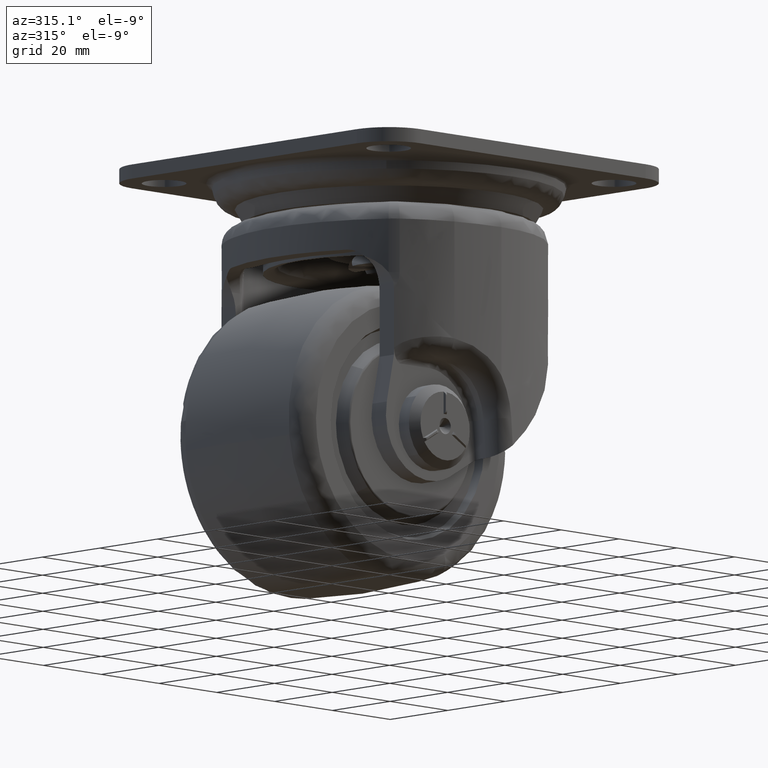
[diagram: clean part render]
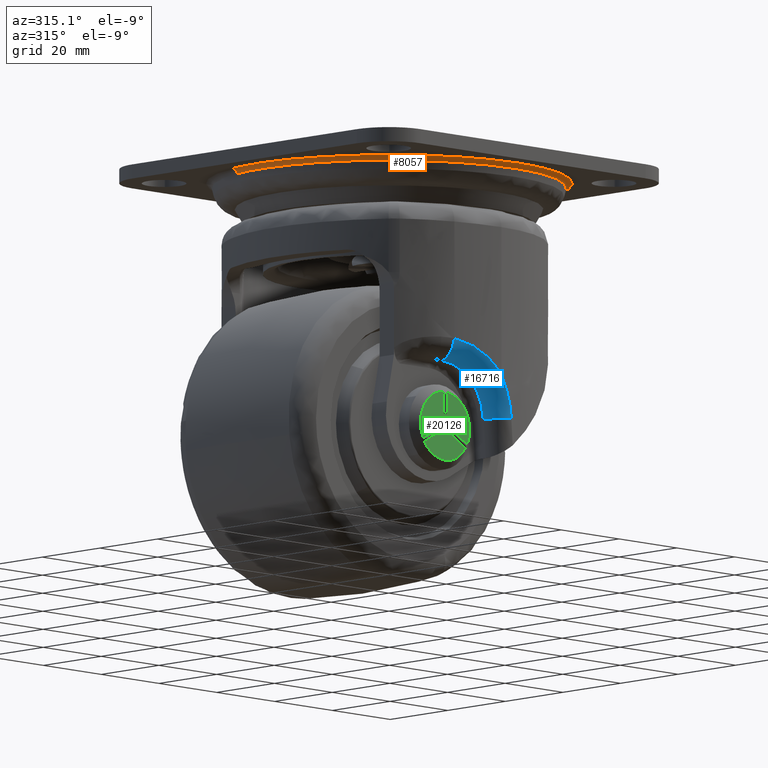
[diagram: same view with three faces highlighted in distinct colors, each labeled with its STEP entity id]
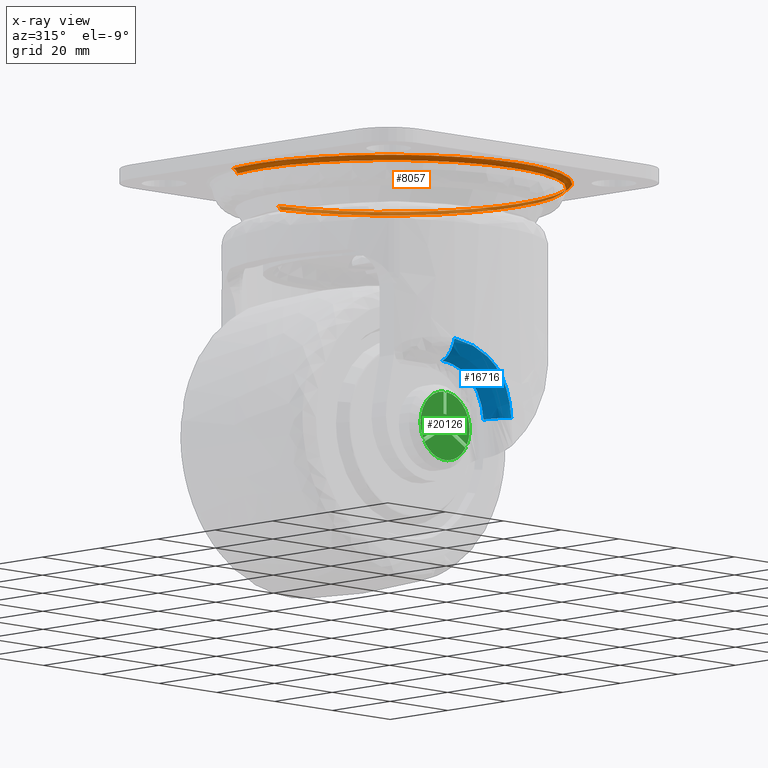
[diagram: x-ray of the same camera — body ghosted, the three highlighted faces saturated]
A machine part, auxiliary view with three faces highlighted in distinct colors.
The next image is the same camera in x-ray (body ghosted, the three faces saturated) — at least one of them is partly hidden behind the body in this view.
Their STEP definitions:

[orange] entity #8057 — the highlighted face is a freeform B-spline surface patch.
#5916=CARTESIAN_POINT('',(32.053869647076162,-29.371960005506700,-4.629707973970553));
#5917=VERTEX_POINT('',#5916);
#5923=CARTESIAN_POINT('',(-0.000001919446639,-43.476000713221758,-4.629707859614130));
#5924=VERTEX_POINT('',#5923);
#5925=CARTESIAN_POINT('',(32.053869647076162,-29.371960005506700,-4.629707973970553));
#5926=CARTESIAN_POINT('',(30.595455751196099,-30.963672546049430,-4.629707968767466));
#5927=CARTESIAN_POINT('',(27.303753365502459,-34.058183624007043,-4.629707957023903));
#5928=CARTESIAN_POINT('',(21.782179704217850,-37.828542785928072,-4.629707937324928));
#5929=CARTESIAN_POINT('',(16.341478926499121,-40.414185002820687,-4.629707917914561));
#5930=CARTESIAN_POINT('',(11.608830921702200,-41.968562001251087,-4.629707901030114));
#5931=CARTESIAN_POINT('',(6.382537778982758,-43.138523980301983,-4.629707882384733));
#5932=CARTESIAN_POINT('',(2.534287089427489,-43.476225486118402,-4.629707868655514));
#5933=CARTESIAN_POINT('',(-0.000001919446639,-43.476000713221758,-4.629707859614130));
#5934=B_SPLINE_CURVE_WITH_KNOTS('',3,(#5925,#5926,#5927,#5928,#5929,#5930,#5931,#5932,#5933),.UNSPECIFIED.,.F.,.U.,(4,1,1,1,1,1,4),(6.249905E-009,6.476475248966153,13.516141788348540,19.992600290383120,24.497992378932992,28.440210347800001,36.043034214055943),.UNSPECIFIED.);
#5935=EDGE_CURVE('',#5917,#5924,#5934,.T.);
#5937=CARTESIAN_POINT('',(-31.157118544281740,-30.321554153521969,-4.629707744863282));
#5938=VERTEX_POINT('',#5937);
#5939=CARTESIAN_POINT('',(-0.000001919446639,-43.476000713221758,-4.629707859614130));
#5940=CARTESIAN_POINT('',(-2.080595845805954,-43.476092463587037,-4.629707851951366));
#5941=CARTESIAN_POINT('',(-5.427603652709639,-43.235267967705887,-4.629707839624394));
#5942=CARTESIAN_POINT('',(-10.498556816780461,-42.274390050259740,-4.629707820948227));
#5943=CARTESIAN_POINT('',(-15.010293051646030,-40.911441092757649,-4.629707804331638));
#5944=CARTESIAN_POINT('',(-20.240758315038970,-38.625877917275830,-4.629707785067923));
#5945=CARTESIAN_POINT('',(-25.745758666259110,-35.279596346521657,-4.629707764793293));
#5946=CARTESIAN_POINT('',(-29.390751649505159,-32.136922394793977,-4.629707751368705));
#5947=CARTESIAN_POINT('',(-31.157118544281740,-30.321554153521969,-4.629707744863282));
#5948=B_SPLINE_CURVE_WITH_KNOTS('',3,(#5939,#5940,#5941,#5942,#5943,#5944,#5945,#5946,#5947),.UNSPECIFIED.,.F.,.U.,(4,1,1,1,1,1,4),(7.749343E-009,6.241776059562408,10.041132515879690,15.468784905209169,20.353638637896889,27.138188353513168,34.736877217700552),.UNSPECIFIED.);
#5949=EDGE_CURVE('',#5924,#5938,#5948,.T.);
#5997=CARTESIAN_POINT('',(-43.476000713221801,0.0,-4.629707859614130));
#5998=VERTEX_POINT('',#5997);
#5999=CARTESIAN_POINT('',(-31.157118544281740,-30.321554153521969,-4.629707744863282));
#6000=CARTESIAN_POINT('',(-33.229573023324278,-28.192662394679932,-4.629707752920010));
#6001=CARTESIAN_POINT('',(-36.335474107656417,-24.265394267939570,-4.629707767782577));
#6002=CARTESIAN_POINT('',(-39.679353936503340,-18.107192857558349,-4.629707791088136));
#6003=CARTESIAN_POINT('',(-41.678451792622752,-12.776122521848070,-4.629707811263334));
#6004=CARTESIAN_POINT('',(-43.108189801207963,-6.728425417404428,-4.629707834150620));
#6005=CARTESIAN_POINT('',(-43.476215410070978,-2.534126610874301,-4.629707850023847));
#6006=CARTESIAN_POINT('',(-43.476000713221801,0.0,-4.629707859614130));
#6007=B_SPLINE_CURVE_WITH_KNOTS('',3,(#5999,#6000,#6001,#6002,#6003,#6004,#6005,#6006),.UNSPECIFIED.,.F.,.U.,(4,1,1,1,1,4),(8.803326E-009,8.913093798433085,14.942548363697430,20.971980122384490,25.952829515231699,33.555170713053137),.UNSPECIFIED.);
#6008=EDGE_CURVE('',#5938,#5998,#6007,.T.);
#6010=CARTESIAN_POINT('',(-42.242661913668918,10.282030563446350,-4.629707857622346));
#6011=VERTEX_POINT('',#6010);
#6012=CARTESIAN_POINT('',(-43.476000713221801,0.0,-4.629707859614130));
#6013=CARTESIAN_POINT('',(-43.476395344986642,3.460164443964851,-4.629707859614777));
#6014=CARTESIAN_POINT('',(-43.061551058389057,6.920141080832084,-4.629707858944800));
#6015=CARTESIAN_POINT('',(-42.242661913668918,10.282030563446350,-4.629707857622346));
#6016=B_SPLINE_CURVE_WITH_KNOTS('',3,(#6012,#6013,#6014,#6015),.UNSPECIFIED.,.F.,.U.,(4,4),(1.020595E-009,10.380381237730280),.UNSPECIFIED.);
#6017=EDGE_CURVE('',#5998,#6011,#6016,.T.);
#6019=CARTESIAN_POINT('',(5.335744226354644,43.147334466735913,-4.629707858828935));
#6020=VERTEX_POINT('',#6019);
#6038=CARTESIAN_POINT('',(43.476000713221801,0.0,-4.629707859614130));
#6039=VERTEX_POINT('',#6038);
#6040=CARTESIAN_POINT('',(5.335744226354644,43.147334466735913,-4.629707858828935));
#6041=CARTESIAN_POINT('',(7.450525534314648,42.885933025874287,-4.629707858872475));
#6042=CARTESIAN_POINT('',(11.319083110971709,42.115389984241119,-4.629707858952129));
#6043=CARTESIAN_POINT('',(16.675132181092469,40.267162839264351,-4.629707859062356));
#6044=CARTESIAN_POINT('',(21.102439217069740,38.107262051437928,-4.629707859153563));
#6045=CARTESIAN_POINT('',(25.756394738988192,35.181027573177303,-4.629707859249290));
#6046=CARTESIAN_POINT('',(30.000712671069330,31.668081548669850,-4.629707859336764));
#6047=CARTESIAN_POINT('',(34.143624365535530,27.112583890789821,-4.629707859421975));
#6048=CARTESIAN_POINT('',(37.240956651108199,22.661550963384361,-4.629707859485830));
#6049=CARTESIAN_POINT('',(39.935955963812411,17.493797981476749,-4.629707859541141));
#6050=CARTESIAN_POINT('',(41.686048138105512,12.708747667191609,-4.629707859577297));
#6051=CARTESIAN_POINT('',(43.099993036391197,6.720327046487848,-4.629707859606501));
#6052=CARTESIAN_POINT('',(43.476290806001423,2.704592874332579,-4.629707859613875));
#6053=CARTESIAN_POINT('',(43.476000713221801,0.0,-4.629707859614130));
#6054=B_SPLINE_CURVE_WITH_KNOTS('',3,(#6040,#6041,#6042,#6043,#6044,#6045,#6046,#6047,#6048,#6049,#6050,#6051,#6052,#6053),.UNSPECIFIED.,.F.,.U.,(4,1,1,1,1,1,1,1,1,1,1,4),(0.000000034432141,6.392611738418907,11.801774612075610,16.965051913875140,21.144847152793979,28.275092007378369,33.438325100314572,39.585098778890703,44.502515219009759,50.895160885619383,54.829094514249903,62.942795512884473),.UNSPECIFIED.);
#6055=EDGE_CURVE('',#6020,#6039,#6054,.T.);
#6057=CARTESIAN_POINT('',(43.476000713221801,0.0,-4.629707859614130));
#6058=CARTESIAN_POINT('',(43.476104977552083,-2.099547723641163,-4.629707867788478));
#6059=CARTESIAN_POINT('',(43.226061274045733,-5.542759179384989,-4.629707881194249));
#6060=CARTESIAN_POINT('',(42.155481791408441,-11.072922509302410,-4.629707902725312));
#6061=CARTESIAN_POINT('',(40.625796196519168,-15.800576463905470,-4.629707921131870));
#6062=CARTESIAN_POINT('',(38.310027756893923,-20.751181150852680,-4.629707940406537));
#6063=CARTESIAN_POINT('',(35.624604320735173,-25.126025780990219,-4.629707957439454));
#6064=CARTESIAN_POINT('',(33.302134146593417,-28.009809959525700,-4.629707968667224));
#6065=CARTESIAN_POINT('',(32.053869647076162,-29.371960005506700,-4.629707973970553));
#6066=B_SPLINE_CURVE_WITH_KNOTS('',3,(#6057,#6058,#6059,#6060,#6061,#6062,#6063,#6064,#6065),.UNSPECIFIED.,.F.,.U.,(4,1,1,1,1,1,4),(0.000000010308867,6.298631753708616,10.329765163857321,16.880322943604568,21.163408749043072,26.706223307339570,32.249017653265511),.UNSPECIFIED.);
#6067=EDGE_CURVE('',#6039,#5917,#6066,.T.);
#7920=CARTESIAN_POINT('',(5.333323294588442,43.127717749641555,-4.718461079368458));
#7921=CARTESIAN_POINT('',(7.831529662693767,42.818780877650077,-4.718461079368458));
#7922=CARTESIAN_POINT('',(10.277356033511721,42.223457089842690,-4.718461079368456));
#7923=CARTESIAN_POINT('',(52.500813123354419,31.946101056330967,-4.718461079368457));
#7924=CARTESIAN_POINT('',(42.223457089842690,-10.277356033511721,-4.718461079368456));
#7925=CARTESIAN_POINT('',(31.946101056330967,-52.500813123354419,-4.718461079368457));
#7926=CARTESIAN_POINT('',(-10.277356033511728,-42.223457089842690,-4.718461079368456));
#7927=CARTESIAN_POINT('',(-52.500813123354419,-31.946101056330967,-4.718461079368457));
#7928=CARTESIAN_POINT('',(-42.223457089842690,10.277356033511722,-4.718461079368456));
#7929=CARTESIAN_POINT('',(5.363709708075516,43.373436336704174,-3.422778325703773));
#7930=CARTESIAN_POINT('',(7.876149515161433,43.062739308237056,-3.422778325703773));
#7931=CARTESIAN_POINT('',(10.335910891850245,42.464023685025026,-3.422778325703774));
#7932=CARTESIAN_POINT('',(52.799934576875252,32.128112793174779,-3.422778325703773));
#7933=CARTESIAN_POINT('',(42.464023685025026,-10.335910891850244,-3.422778325703774));
#7934=CARTESIAN_POINT('',(32.128112793174758,-52.799934576875252,-3.422778325703773));
#7935=CARTESIAN_POINT('',(-10.335910891850249,-42.464023685025026,-3.422778325703774));
#7936=CARTESIAN_POINT('',(-52.799934576875252,-32.128112793174758,-3.422778325703773));
#7937=CARTESIAN_POINT('',(-42.464023685025026,10.335910891850247,-3.422778325703774));
#7938=CARTESIAN_POINT('',(5.525306413540140,44.680182003073533,-3.502759726695740));
#7939=CARTESIAN_POINT('',(8.113440472850774,44.360124360604061,-3.502759726695739));
#7940=CARTESIAN_POINT('',(10.647309017215647,43.743370760415836,-3.502759726695740));
#7941=CARTESIAN_POINT('',(54.390679777631497,33.096061743200195,-3.502759726695739));
#7942=CARTESIAN_POINT('',(43.743370760415836,-10.647309017215640,-3.502759726695740));
#7943=CARTESIAN_POINT('',(33.096061743200181,-54.390679777631497,-3.502759726695739));
#7944=CARTESIAN_POINT('',(-10.647309017215649,-43.743370760415836,-3.502759726695740));
#7945=CARTESIAN_POINT('',(-54.390679777631497,-33.096061743200181,-3.502759726695739));
#7946=CARTESIAN_POINT('',(-43.743370760415836,10.647309017215649,-3.502759726695740));
#7954=(BOUNDED_SURFACE()B_SPLINE_SURFACE(2,2,((#7920,#7929,#7938),(#7921,#7930,#7939),(#7922,#7931,#7940),(#7923,#7932,#7941),(#7924,#7933,#7942),(#7925,#7934,#7943),(#7926,#7935,#7944),(#7927,#7936,#7945),(#7928,#7937,#7946)),.UNSPECIFIED.,.F.,.F.,.U.)B_SPLINE_SURFACE_WITH_KNOTS((3,2,2,2,3),(3,3),(0.0,5.967390167073430,80.559838392393374,155.152286617713290,229.744734843033310),(0.0,2.262961734938772),.UNSPECIFIED.)GEOMETRIC_REPRESENTATION_ITEM()RATIONAL_B_SPLINE_SURFACE(((0.875760305103676,0.657406138772205,0.875150902904258),(0.893774018128173,0.670928475255568,0.893152080996225),(0.915218910690395,0.687026491954379,0.914582051022431),(0.647157498019343,0.485801091315747,0.646707170229462),(0.915218910690395,0.687026491954379,0.914582051022431),(0.647157498019343,0.485801091315747,0.646707170229462),(0.915218910690395,0.687026491954379,0.914582051022431),(0.647157498019343,0.485801091315747,0.646707170229462),(0.915218910690395,0.687026491954379,0.914582051022431)))REPRESENTATION_ITEM('')SURFACE());
#7955=ORIENTED_EDGE('',*,*,#6055,.F.);
#7956=CARTESIAN_POINT('',(5.514139446937775,44.589922027018467,-3.500000000000000));
#7957=VERTEX_POINT('',#7956);
#7958=CARTESIAN_POINT('',(5.335744226354644,43.147334466735913,-4.629707858828935));
#7959=CARTESIAN_POINT('',(5.340116752568878,43.182692767862378,-4.489641719625759));
#7960=CARTESIAN_POINT('',(5.353883705079614,43.294018813361603,-4.219950754470428));
#7961=CARTESIAN_POINT('',(5.385395084047959,43.548834627170343,-3.904395412324613));
#7962=CARTESIAN_POINT('',(5.420438117368603,43.832209057141313,-3.696397029904267));
#7963=CARTESIAN_POINT('',(5.462202362423206,44.169934362663753,-3.543070481660410));
#7964=CARTESIAN_POINT('',(5.493866656694696,44.425986721379111,-3.499908538943924));
#7965=CARTESIAN_POINT('',(5.514139446937775,44.589922027018467,-3.500000000000000));
#7966=B_SPLINE_CURVE_WITH_KNOTS('',3,(#7958,#7959,#7960,#7961,#7962,#7963,#7964,#7965),.UNSPECIFIED.,.F.,.U.,(4,1,1,1,1,4),(0.000000178748468,0.433575131742481,0.867180028088031,1.207820504900976,1.486552194676647,1.982069533318537),.UNSPECIFIED.);
#7967=EDGE_CURVE('',#6020,#7957,#7966,.T.);
#7968=ORIENTED_EDGE('',*,*,#7967,.T.);
#7969=CARTESIAN_POINT('',(44.929576899999901,0.0,-3.500000000000000));
#7970=VERTEX_POINT('',#7969);
#7971=CARTESIAN_POINT('',(5.514139446937775,44.589922027018467,-3.500000000000000));
#7972=CARTESIAN_POINT('',(7.195264592860379,44.382065496134921,-3.499999999999997));
#7973=CARTESIAN_POINT('',(10.450497867916210,43.791028021834293,-3.499999999999998));
#7974=CARTESIAN_POINT('',(15.246060846976100,42.360689163679787,-3.500000000000004));
#7975=CARTESIAN_POINT('',(19.621392425607770,40.510036815750233,-3.500000000000005));
#7976=CARTESIAN_POINT('',(23.926129857524991,38.131604740366441,-3.499999999999992));
#7977=CARTESIAN_POINT('',(28.231206079145430,35.108540832477317,-3.500000000000020));
#7978=CARTESIAN_POINT('',(32.182568173517232,31.504404017946790,-3.500000000000000));
#7979=CARTESIAN_POINT('',(35.509219100826002,27.654065785422571,-3.500000000000023));
#7980=CARTESIAN_POINT('',(38.086938181514768,23.971940794822100,-3.499999999999996));
#7981=CARTESIAN_POINT('',(40.578745068083620,19.536217408761289,-3.499999999999958));
#7982=CARTESIAN_POINT('',(42.497404356145218,14.908591581291050,-3.500000000000130));
#7983=CARTESIAN_POINT('',(43.852409755325233,10.092674338541590,-3.499999999999743));
#7984=CARTESIAN_POINT('',(44.708879814690093,5.335868758526067,-3.500000000000514));
#7985=CARTESIAN_POINT('',(44.929653518608660,1.948021832785578,-3.499999999999485));
#7986=CARTESIAN_POINT('',(44.929576899999901,0.0,-3.500000000000000));
#7987=B_SPLINE_CURVE_WITH_KNOTS('',3,(#7971,#7972,#7973,#7974,#7975,#7976,#7977,#7978,#7979,#7980,#7981,#7982,#7983,#7984,#7985,#7986),.UNSPECIFIED.,.F.,.U.,(4,1,1,1,1,1,1,1,1,1,1,1,1,4),(0.000000033813180,5.081781769190869,9.909524105157594,14.991349540204340,19.310902570276461,24.646802656354801,30.744988937891289,35.318580162398753,39.892223951981677,44.211775215691532,50.564057388382068,54.883611142926952,59.203161685962520,65.047224327267429),.UNSPECIFIED.);
#7988=EDGE_CURVE('',#7957,#7970,#7987,.T.);
#7989=ORIENTED_EDGE('',*,*,#7988,.T.);
#7990=CARTESIAN_POINT('',(-0.000001883878377,-44.929576899999873,-3.500000000000000));
#7991=VERTEX_POINT('',#7990);
#7992=CARTESIAN_POINT('',(44.929576899999901,0.0,-3.500000000000000));
#7993=CARTESIAN_POINT('',(44.929711808219722,-2.205473834045155,-3.500000000000004));
#7994=CARTESIAN_POINT('',(44.665110853303858,-5.789325981834421,-3.499999999999994));
#7995=CARTESIAN_POINT('',(43.551984755059699,-11.476946483480390,-3.499999999999997));
#7996=CARTESIAN_POINT('',(41.935101433485983,-16.474090816608669,-3.500000000000018));
#7997=CARTESIAN_POINT('',(39.455987206104872,-21.715609100249349,-3.499999999999986));
#7998=CARTESIAN_POINT('',(36.808538682430502,-25.924886761268372,-3.500000000000026));
#7999=CARTESIAN_POINT('',(33.430112272483349,-30.172770011126438,-3.499999999999998));
#8000=CARTESIAN_POINT('',(29.836399903797240,-33.744522707168493,-3.500000000000003));
#8001=CARTESIAN_POINT('',(25.327926050112410,-37.240735478805433,-3.500000000000008));
#8002=CARTESIAN_POINT('',(20.666914630757589,-40.034466147450260,-3.499999999999997));
#8003=CARTESIAN_POINT('',(15.265505268239449,-42.389210722377257,-3.499999999999999));
#8004=CARTESIAN_POINT('',(10.400201281459429,-43.800085412293683,-3.500000000000010));
#8005=CARTESIAN_POINT('',(5.237967097844428,-44.712104579502402,-3.499999999999966));
#8006=CARTESIAN_POINT('',(2.021678720290660,-44.929657228979487,-3.500000000000069));
#8007=CARTESIAN_POINT('',(-0.000001883878377,-44.929576899999873,-3.500000000000000));
#8008=B_SPLINE_CURVE_WITH_KNOTS('',3,(#7992,#7993,#7994,#7995,#7996,#7997,#7998,#7999,#8000,#8001,#8002,#8003,#8004,#8005,#8006,#8007),.UNSPECIFIED.,.F.,.U.,(4,1,1,1,1,1,1,1,1,1,1,1,1,4),(0.000000020883490,6.616404740258616,10.751709418848160,17.368146450906000,22.330488771830179,28.119881631333449,32.255146847581251,38.595879909674039,43.282499287402857,49.347591614874652,54.861289631923732,60.926368638862662,64.510288324206115,70.575326132780944),.UNSPECIFIED.);
#8009=EDGE_CURVE('',#7970,#7991,#8008,.T.);
#8010=ORIENTED_EDGE('',*,*,#8009,.T.);
#8011=CARTESIAN_POINT('',(-44.929576899999901,0.0,-3.500000000000000));
#8012=VERTEX_POINT('',#8011);
#8013=CARTESIAN_POINT('',(-0.000001883878377,-44.929576899999873,-3.500000000000000));
#8014=CARTESIAN_POINT('',(-1.837900113438985,-44.929635155750248,-3.500000000000003));
#8015=CARTESIAN_POINT('',(-5.329883998993111,-44.715001697776380,-3.499999999999996));
#8016=CARTESIAN_POINT('',(-10.583643001746781,-43.770202578565673,-3.500000000000008));
#8017=CARTESIAN_POINT('',(-15.341220646752779,-42.326966183953658,-3.500000000000006));
#8018=CARTESIAN_POINT('',(-20.415075905262061,-40.152032891804389,-3.499999999999984));
#8019=CARTESIAN_POINT('',(-25.589808180667269,-37.136260587685193,-3.500000000000026));
#8020=CARTESIAN_POINT('',(-30.327201510777272,-33.320636657308782,-3.500000000000054));
#8021=CARTESIAN_POINT('',(-34.464797509805003,-29.001369918614468,-3.499999999999822));
#8022=CARTESIAN_POINT('',(-38.212082575669392,-23.981320168377572,-3.500000000000184));
#8023=CARTESIAN_POINT('',(-41.177583542675649,-18.350317472622500,-3.500000000000232));
#8024=CARTESIAN_POINT('',(-43.254830598571118,-12.544346539686760,-3.499999999999715));
#8025=CARTESIAN_POINT('',(-44.584230250440953,-6.708280810962333,-3.500000000000245));
#8026=CARTESIAN_POINT('',(-44.929741417945827,-2.389271707039491,-3.499999999999915));
#8027=CARTESIAN_POINT('',(-44.929576899999901,0.0,-3.500000000000000));
#8028=B_SPLINE_CURVE_WITH_KNOTS('',3,(#8013,#8014,#8015,#8016,#8017,#8018,#8019,#8020,#8021,#8022,#8023,#8024,#8025,#8026,#8027),.UNSPECIFIED.,.F.,.U.,(4,1,1,1,1,1,1,1,1,1,1,1,4),(0.000000021013591,5.513694776290265,10.476016536876109,15.989721504376771,20.400685681651041,27.017141273860670,33.909281924556922,38.595878749480647,44.936613089931399,52.655808154081157,57.618136678735247,63.407520759200793,70.575324009207662),.UNSPECIFIED.);
#8029=EDGE_CURVE('',#7991,#8012,#8028,.T.);
#8030=ORIENTED_EDGE('',*,*,#8029,.T.);
#8031=CARTESIAN_POINT('',(-43.655002660021353,10.625799873042210,-3.500000000000000));
#8032=VERTEX_POINT('',#8031);
#8033=CARTESIAN_POINT('',(-44.929576899999901,0.0,-3.500000000000000));
#8034=CARTESIAN_POINT('',(-44.930193644495553,3.575874710120604,-3.499999999999993));
#8035=CARTESIAN_POINT('',(-44.501055691640943,7.151482689300904,-3.500000000000003));
#8036=CARTESIAN_POINT('',(-43.655002660021353,10.625799873042210,-3.500000000000000));
#8037=B_SPLINE_CURVE_WITH_KNOTS('',3,(#8033,#8034,#8035,#8036),.UNSPECIFIED.,.F.,.U.,(4,4),(1.057350E-009,10.727438803293680),.UNSPECIFIED.);
#8038=EDGE_CURVE('',#8012,#8032,#8037,.T.);
#8039=ORIENTED_EDGE('',*,*,#8038,.T.);
#8040=CARTESIAN_POINT('',(-42.242661913668918,10.282030563446350,-4.629707857622346));
#8041=CARTESIAN_POINT('',(-42.287073691619277,10.292840565402670,-4.449571324412504));
#8042=CARTESIAN_POINT('',(-42.407793901642982,10.322224340774291,-4.183078941373537));
#8043=CARTESIAN_POINT('',(-42.695121631606391,10.392161043799440,-3.848833203661752));
#8044=CARTESIAN_POINT('',(-43.083474081270673,10.486687562169489,-3.581991549371783));
#8045=CARTESIAN_POINT('',(-43.444325941477189,10.574520328581070,-3.499719341793577));
#8046=CARTESIAN_POINT('',(-43.655002660021353,10.625799873042210,-3.500000000000000));
#8047=B_SPLINE_CURVE_WITH_KNOTS('',3,(#8040,#8041,#8042,#8043,#8044,#8045,#8046),.UNSPECIFIED.,.F.,.U.,(4,1,1,1,4),(0.000000178751046,0.557459902545601,0.867180027317173,1.331694697588417,1.982069531555567),.UNSPECIFIED.);
#8048=EDGE_CURVE('',#6011,#8032,#8047,.T.);
#8049=ORIENTED_EDGE('',*,*,#8048,.F.);
#8050=ORIENTED_EDGE('',*,*,#6017,.F.);
#8051=ORIENTED_EDGE('',*,*,#6008,.F.);
#8052=ORIENTED_EDGE('',*,*,#5949,.F.);
#8053=ORIENTED_EDGE('',*,*,#5935,.F.);
#8054=ORIENTED_EDGE('',*,*,#6067,.F.);
#8055=EDGE_LOOP('',(#7955,#7968,#7989,#8010,#8030,#8039,#8049,#8050,#8051,#8052,#8053,#8054));
#8056=FACE_OUTER_BOUND('',#8055,.T.);
#8057=ADVANCED_FACE('',(#8056),#7954,.F.);

[blue] entity #16716 — the highlighted face is a freeform B-spline surface patch.
#16430=CARTESIAN_POINT('',(-13.737567801971860,-32.237554186513712,-52.671601551437597));
#16431=VERTEX_POINT('',#16430);
#16432=CARTESIAN_POINT('',(-14.316320966769499,-37.056618926907497,-47.728802068583498));
#16433=VERTEX_POINT('',#16432);
#16434=CARTESIAN_POINT('',(-13.737567801971860,-32.237554186513712,-52.671601551437597));
#16435=CARTESIAN_POINT('',(-13.851905637099390,-32.660491692020777,-52.654286985290369));
#16436=CARTESIAN_POINT('',(-14.015000454941751,-33.314021812885947,-52.538513808958172));
#16437=CARTESIAN_POINT('',(-14.227216095655979,-34.296995684239349,-52.147468251622549));
#16438=CARTESIAN_POINT('',(-14.398580779539770,-35.251491976469417,-51.540302453742477));
#16439=CARTESIAN_POINT('',(-14.490578525676829,-36.081658227091673,-50.638337982313949));
#16440=CARTESIAN_POINT('',(-14.492722157071210,-36.667834168262182,-49.589761418112772));
#16441=CARTESIAN_POINT('',(-14.432968141099289,-36.967151686102767,-48.655516408896162));
#16442=CARTESIAN_POINT('',(-14.355445622703010,-37.045805859336546,-48.004834339220210));
#16443=CARTESIAN_POINT('',(-14.316320966769499,-37.056618926907497,-47.728802068583498));
#16444=B_SPLINE_CURVE_WITH_KNOTS('',3,(#16434,#16435,#16436,#16437,#16438,#16439,#16440,#16441,#16442,#16443),.UNSPECIFIED.,.F.,.U.,(4,1,1,1,1,1,1,4),(0.000000136029924,1.315346849581606,2.032811946318186,3.228589050758318,4.723294266461132,5.679910389598978,6.815920618784045,7.652933709281429),.UNSPECIFIED.);
#16445=EDGE_CURVE('',#16431,#16433,#16444,.T.);
#16461=CARTESIAN_POINT('',(4.364372850830546,-38.822379565299187,-65.761568088843688));
#16462=CARTESIAN_POINT('',(4.359739521625710,-38.822756140518194,-65.716813161209885));
#16463=CARTESIAN_POINT('',(4.355106188931996,-38.823132716020766,-65.672058199875778));
#16464=CARTESIAN_POINT('',(4.234638311696732,-38.832923778828203,-64.508417351252774));
#16465=CARTESIAN_POINT('',(4.017384707171087,-38.850465911724299,-63.414271091753299));
#16466=CARTESIAN_POINT('',(3.388665880092234,-38.893920460829683,-61.273511018061534));
#16467=CARTESIAN_POINT('',(2.977190972501884,-38.919880683770408,-60.226856006238343));
#16468=CARTESIAN_POINT('',(1.951890276424031,-38.966981682859860,-58.182800174068667));
#16469=CARTESIAN_POINT('',(1.351069836670662,-38.987360529621583,-57.211922489613372));
#16470=CARTESIAN_POINT('',(-0.015320399241032,-39.004353472122347,-55.375690286198811));
#16471=CARTESIAN_POINT('',(-0.781555785500836,-39.001095694528253,-54.509025819788405));
#16472=CARTESIAN_POINT('',(-2.060448496927216,-38.962159797857673,-53.289222559656679));
#16473=CARTESIAN_POINT('',(-2.504409489138621,-38.943537640568152,-52.900088817737668));
#16474=CARTESIAN_POINT('',(-3.419885669705385,-38.892964954107555,-52.161647687628879));
#16475=CARTESIAN_POINT('',(-3.892427156101921,-38.860986946348568,-51.811358720677610));
#16476=CARTESIAN_POINT('',(-5.353479606359246,-38.741442761504715,-50.816446157427464));
#16477=CARTESIAN_POINT('',(-6.385121913832008,-38.630432540724726,-50.227420015014445));
#16478=CARTESIAN_POINT('',(-8.020204752479195,-38.400602491712725,-49.458468587255986));
#16479=CARTESIAN_POINT('',(-8.575102131925771,-38.314005455845404,-49.223767297065343));
#16480=CARTESIAN_POINT('',(-9.693104498323988,-38.121040174592871,-48.800441999798871));
#16481=CARTESIAN_POINT('',(-10.257845595288460,-38.014447339757233,-48.611043446804167));
#16482=CARTESIAN_POINT('',(-11.968204270247940,-37.662366553138810,-48.107731101539969));
#16483=CARTESIAN_POINT('',(-13.129882302239126,-37.384654527405836,-47.858331227284829));
#16484=CARTESIAN_POINT('',(-14.358737430790363,-37.044891807475636,-47.688066497067616));
#16485=CARTESIAN_POINT('',(-14.405999156520975,-37.031824545021522,-47.681518121433911));
#16486=CARTESIAN_POINT('',(-14.453260739143300,-37.018757322135052,-47.674969765628710));
#16487=CARTESIAN_POINT('',(4.346208602798689,-38.823848201082278,-65.763160851221514));
#16488=CARTESIAN_POINT('',(4.341579829202521,-38.824222829014438,-65.718446630485147));
#16489=CARTESIAN_POINT('',(4.336951053860831,-38.824597457087904,-65.673732392886919));
#16490=CARTESIAN_POINT('',(4.216602279707825,-38.834337836794504,-64.511156271798484));
#16491=CARTESIAN_POINT('',(3.999563868786931,-38.851788602735915,-63.418004610223676));
#16492=CARTESIAN_POINT('',(3.371455575403679,-38.894995240676991,-61.279157595236562));
#16493=CARTESIAN_POINT('',(2.960378599921748,-38.920798050320926,-60.233423625868454));
#16494=CARTESIAN_POINT('',(1.936046105823781,-38.967543001038266,-58.191127312475764));
#16495=CARTESIAN_POINT('',(1.335786009348294,-38.987727487278207,-57.221065831377850));
#16496=CARTESIAN_POINT('',(-0.029359299446568,-39.004333099397329,-55.386347706003306));
#16497=CARTESIAN_POINT('',(-0.794908202288310,-39.000882030163119,-54.520380963832451));
#16498=CARTESIAN_POINT('',(-2.072684048963602,-38.961681229278895,-53.301546311138480));
#16499=CARTESIAN_POINT('',(-2.516260211618124,-38.942975643993030,-52.912719954578783));
#16500=CARTESIAN_POINT('',(-3.430950946346146,-38.892250774626888,-52.174860839323664));
#16501=CARTESIAN_POINT('',(-3.903091196959411,-38.860203911941760,-51.824846951825727));
#16502=CARTESIAN_POINT('',(-5.362913243929401,-38.740479019052103,-50.830719028532492));
#16503=CARTESIAN_POINT('',(-6.393706991263881,-38.629383931719275,-50.242157780876020));
#16504=CARTESIAN_POINT('',(-8.027471569437038,-38.399498439233355,-49.473835528674940));
#16505=CARTESIAN_POINT('',(-8.581926241809018,-38.312895265166759,-49.239330326161401));
#16506=CARTESIAN_POINT('',(-9.699045315822398,-38.119944010667950,-48.816370038872044));
#16507=CARTESIAN_POINT('',(-10.263345164726976,-38.013371256977948,-48.627140762033271));
#16508=CARTESIAN_POINT('',(-11.972381660957266,-37.661391875904464,-48.124301200102927));
#16509=CARTESIAN_POINT('',(-13.133182197181702,-37.383801496900581,-47.875169480287468));
#16510=CARTESIAN_POINT('',(-14.361122466061849,-37.044229747332260,-47.705145410970992));
#16511=CARTESIAN_POINT('',(-14.408349970278165,-37.031169563021265,-47.698606157675037));
#16512=CARTESIAN_POINT('',(-14.455577402892381,-37.018109398510909,-47.692066914293264));
#16513=CARTESIAN_POINT('',(-1.052929788707216,-39.260385283464529,-66.236593304209933));
#16514=CARTESIAN_POINT('',(-1.055901908264185,-39.260156664710976,-66.203951581590530));
#16515=CARTESIAN_POINT('',(-1.058873696903081,-39.259928071412020,-66.171313493325556));
#16516=CARTESIAN_POINT('',(-1.136024231719653,-39.253993566165043,-65.323996853078867));
#16517=CARTESIAN_POINT('',(-1.275364527507978,-39.243302190712399,-64.523117746470717));
#16518=CARTESIAN_POINT('',(-1.686548403650496,-39.210866507491808,-62.938652318661205));
#16519=CARTESIAN_POINT('',(-1.958473557807640,-39.189195054672489,-62.154934098878762));
#16520=CARTESIAN_POINT('',(-2.652439691474426,-39.130101241191952,-60.602673948600703));
#16521=CARTESIAN_POINT('',(-3.065890697510315,-39.093409718262187,-59.854309037971397));
#16522=CARTESIAN_POINT('',(-4.027952643586243,-38.998530490820485,-58.421819664059313));
#16523=CARTESIAN_POINT('',(-4.576995241782031,-38.940361358953055,-57.736738257346893));
#16524=CARTESIAN_POINT('',(-5.512128523126568,-38.827154397239283,-56.765783871417696));
#16525=CARTESIAN_POINT('',(-5.839561006129988,-38.785374816876455,-56.454872525626257));
#16526=CARTESIAN_POINT('',(-6.520445063469971,-38.692847418007062,-55.864055041602917));
#16527=CARTESIAN_POINT('',(-6.874645084577360,-38.642009986517962,-55.583366469991574));
#16528=CARTESIAN_POINT('',(-7.977919661330241,-38.473329398388138,-54.787162050296416));
#16529=CARTESIAN_POINT('',(-8.767509657673228,-38.339440029300498,-54.317199407083457));
#16530=CARTESIAN_POINT('',(-10.033284624067573,-38.094753887534935,-53.715474183771320));
#16531=CARTESIAN_POINT('',(-10.465106107311099,-38.006527289171117,-53.534100419456522));
#16532=CARTESIAN_POINT('',(-11.338947629332695,-37.817359095885486,-53.213143400913054));
#16533=CARTESIAN_POINT('',(-11.782234415176278,-37.716175161109447,-53.072950445119446));
#16534=CARTESIAN_POINT('',(-13.129294442204182,-37.391458650004516,-52.713328214312035));
#16535=CARTESIAN_POINT('',(-14.050228916544693,-37.146742790485661,-52.554550171062985));
#16536=CARTESIAN_POINT('',(-15.027581446425057,-36.859227901296805,-52.477567723459629));
#16537=CARTESIAN_POINT('',(-15.065385596449238,-36.848106780030129,-52.474590030243043));
#16538=CARTESIAN_POINT('',(-15.103205667116159,-36.836980975272411,-52.471611083016271));
#16539=CARTESIAN_POINT('',(-1.056234250961004,-33.823212154859618,-66.198439657264643));
#16540=CARTESIAN_POINT('',(-1.059380074925850,-33.823551024674451,-66.164931844427969));
#16541=CARTESIAN_POINT('',(-1.062525900078388,-33.823889894617189,-66.131424018940550));
#16542=CARTESIAN_POINT('',(-1.144317772684191,-33.832700558225277,-65.260216097117990));
#16543=CARTESIAN_POINT('',(-1.291822426518954,-33.848485536146697,-64.441034011547458));
#16544=CARTESIAN_POINT('',(-1.718681215679936,-33.887558110866657,-62.838273418885514));
#16545=CARTESIAN_POINT('',(-1.998038608474412,-33.910888285067649,-62.054664581366275));
#16546=CARTESIAN_POINT('',(-2.694108728973928,-33.953123868250657,-60.524338202794915));
#16547=CARTESIAN_POINT('',(-3.101987820278594,-33.971344402485379,-59.797479325881859));
#16548=CARTESIAN_POINT('',(-4.029551842843404,-33.986241068014237,-58.422780622466391));
#16549=CARTESIAN_POINT('',(-4.549686062927632,-33.983032997844496,-57.773958608262078));
#16550=CARTESIAN_POINT('',(-5.417791613714226,-33.947384662351148,-56.860767986913515));
#16551=CARTESIAN_POINT('',(-5.719143114482628,-33.930392019065188,-56.569450205885417));
#16552=CARTESIAN_POINT('',(-6.340538836376060,-33.884342891586364,-56.016631720507419));
#16553=CARTESIAN_POINT('',(-6.661280051925771,-33.855261317054641,-55.754395610150041));
#16554=CARTESIAN_POINT('',(-7.652963280081296,-33.746646782431945,-55.009578683492293));
#16555=CARTESIAN_POINT('',(-8.353174540221138,-33.645895341446796,-54.568614469397517));
#16556=CARTESIAN_POINT('',(-9.462947171347327,-33.437465005348471,-53.992942125033238));
#16557=CARTESIAN_POINT('',(-9.839568772824485,-33.358950737321408,-53.817231499549635));
#16558=CARTESIAN_POINT('',(-10.598382372211741,-33.184033334990644,-53.500300149772826));
#16559=CARTESIAN_POINT('',(-10.981686049084674,-33.087426443545937,-53.358499154246744));
#16560=CARTESIAN_POINT('',(-12.142557030572883,-32.768376268974009,-52.981660030108024));
#16561=CARTESIAN_POINT('',(-12.931037449181254,-32.516773217248456,-52.794908764641917));
#16562=CARTESIAN_POINT('',(-13.765131498209181,-32.209008852642803,-52.667385983509639));
#16563=CARTESIAN_POINT('',(-13.797211380488225,-32.197172004510676,-52.662481361768933));
#16564=CARTESIAN_POINT('',(-13.829291214073585,-32.185335174345589,-52.657576747472945));
#16565=CARTESIAN_POINT('',(-1.056245381071931,-33.804898633503072,-66.198311147906594));
#16566=CARTESIAN_POINT('',(-1.059391790765755,-33.805238388305931,-66.164800410532408));
#16567=CARTESIAN_POINT('',(-1.062538202831587,-33.805578143364905,-66.131289647895201));
#16568=CARTESIAN_POINT('',(-1.144345750885387,-33.814411864992273,-65.260000933193439));
#16569=CARTESIAN_POINT('',(-1.291878092735364,-33.830238429928379,-64.440756376416232));
#16570=CARTESIAN_POINT('',(-1.718790677810797,-33.869423978074288,-62.837931472831912));
#16571=CARTESIAN_POINT('',(-1.998173997277992,-33.892826292819009,-62.054321466172880));
#16572=CARTESIAN_POINT('',(-2.694252781013149,-33.935226787052983,-60.524067392029842));
#16573=CARTESIAN_POINT('',(-3.102113305450633,-33.953538461234501,-59.797281767582184));
#16574=CARTESIAN_POINT('',(-4.029557464111647,-33.968622611016563,-58.422784000285006));
#16575=CARTESIAN_POINT('',(-4.549589537239895,-33.965511067509503,-57.774090165493774));
#16576=CARTESIAN_POINT('',(-5.417455626431612,-33.930005032435353,-56.861106279264312));
#16577=CARTESIAN_POINT('',(-5.718713209841483,-33.913059215700919,-56.569859260352693));
#16578=CARTESIAN_POINT('',(-6.339893736359056,-33.867100762718117,-56.017178823405082));
#16579=CARTESIAN_POINT('',(-6.660513454427380,-33.838063046514058,-55.755010099363083));
#16580=CARTESIAN_POINT('',(-7.651789633121371,-33.729575393769196,-55.010381987013766));
#16581=CARTESIAN_POINT('',(-8.351674311979483,-33.628900913512496,-54.569524795268947));
#16582=CARTESIAN_POINT('',(-9.460878499257925,-33.420572543741919,-53.993948529545250));
#16583=CARTESIAN_POINT('',(-9.837299360332546,-33.342089604176273,-53.818258682380488));
#16584=CARTESIAN_POINT('',(-10.595696424450155,-33.167228778151745,-53.501341635339969));
#16585=CARTESIAN_POINT('',(-10.978784057487145,-33.070647207644143,-53.359534269662191));
#16586=CARTESIAN_POINT('',(-12.138989957093031,-32.751663743065734,-52.982630054445472));
#16587=CARTESIAN_POINT('',(-12.927005463198681,-32.500093343461529,-52.795774677676803));
#16588=CARTESIAN_POINT('',(-13.760608342884867,-32.192347864950690,-52.668066071836904));
#16589=CARTESIAN_POINT('',(-13.792668679262880,-32.180511985060775,-52.663154403509779));
#16590=CARTESIAN_POINT('',(-13.824728918448567,-32.168676141051812,-52.658242750072503));
#16598=(BOUNDED_SURFACE()B_SPLINE_SURFACE(3,2,((#16461,#16487,#16513,#16539,#16565),(#16462,#16488,#16514,#16540,#16566),(#16463,#16489,#16515,#16541,#16567),(#16464,#16490,#16516,#16542,#16568),(#16465,#16491,#16517,#16543,#16569),(#16466,#16492,#16518,#16544,#16570),(#16467,#16493,#16519,#16545,#16571),(#16468,#16494,#16520,#16546,#16572),(#16469,#16495,#16521,#16547,#16573),(#16470,#16496,#16522,#16548,#16574),(#16471,#16497,#16523,#16549,#16575),(#16472,#16498,#16524,#16550,#16576),(#16473,#16499,#16525,#16551,#16577),(#16474,#16500,#16526,#16552,#16578),(#16475,#16501,#16527,#16553,#16579),(#16476,#16502,#16528,#16554,#16580),(#16477,#16503,#16529,#16555,#16581),(#16478,#16504,#16530,#16556,#16582),(#16479,#16505,#16531,#16557,#16583),(#16480,#16506,#16532,#16558,#16584),(#16481,#16507,#16533,#16559,#16585),(#16482,#16508,#16534,#16560,#16586),(#16483,#16509,#16535,#16561,#16587),(#16484,#16510,#16536,#16562,#16588),(#16485,#16511,#16537,#16563,#16589),(#16486,#16512,#16538,#16564,#16590)),.UNSPECIFIED.,.F.,.F.,.U.)B_SPLINE_SURFACE_WITH_KNOTS((4,2,2,2,2,2,2,2,2,2,2,2,4),(3,1,1,3),(0.0,0.148410964247259,3.858685153358839,7.568959342470418,11.279233531581999,14.989507720693579,16.844644815249371,18.699781909805161,22.410056098916741,24.265193193472530,26.120330288028320,29.830604477139900,29.979015441387169),(0.0,0.043813652927147,8.803014166182953,8.846879291453323),.UNSPECIFIED.)GEOMETRIC_REPRESENTATION_ITEM()RATIONAL_B_SPLINE_SURFACE(((1.003220026288845,1.001610013144422,0.678127090100846,1.001611904590207,1.003223809180415),(1.003219648578693,1.001609824289347,0.678164845899938,1.001611715513264,1.003223431026529),(1.003219270868541,1.001609635434271,0.678202601699031,1.001611526436322,1.003223052872643),(1.003209450404385,1.001604725202193,0.679184252496536,1.001606610435696,1.003213220871391),(1.003191750863177,1.001595875431588,0.680953493590118,1.001597750268368,1.003195500536736),(1.003143316303053,1.001571658151526,0.685794998412844,1.001573504537810,1.003147009075621),(1.003112560714097,1.001556280357049,0.688869318317344,1.001558108677477,1.003116217354954),(1.003042314156179,1.001521157078090,0.695891144221664,1.001522944135639,1.003045888271277),(1.003003781272649,1.001501890636324,0.699742880274766,1.001503655059630,1.003007310119259),(1.002926335647740,1.001463167823870,0.707484322863242,1.001464886755559,1.002929773511117),(1.002887350063965,1.001443675031982,0.711381310703755,1.001445371063511,1.002890742127022),(1.002833339962179,1.001416669981090,0.716780145081527,1.001418334287045,1.002836668574091),(1.002816271630559,1.001408135815279,0.718486290644646,1.001409790095285,1.002819580190569),(1.002784986693678,1.001392493346839,0.721613524016835,1.001394129250049,1.002788258500099),(1.002770725347643,1.001385362673822,0.723039084100965,1.001386990199907,1.002773980399814),(1.002733121007381,1.001366560503690,0.726798003233761,1.001368165940959,1.002736331881918),(1.002714928388706,1.001357464194353,0.728616532210338,1.001359058945264,1.002718117890528),(1.002702351254966,1.001351175627483,0.729873738913568,1.001352762990577,1.002705525981154),(1.002700674571880,1.001350337285940,0.730041339676922,1.001351923664149,1.002703847328297),(1.002702777450847,1.001351388725423,0.729831136494851,1.001352976338865,1.002705952677730),(1.002706542654876,1.001353271327438,0.729454767773470,1.001354861152563,1.002709722305126),(1.002726501895458,1.001363250947729,0.727459647774637,1.001364852496927,1.002729704993853),(1.002751344832195,1.001375672416097,0.724976354900423,1.001377288558054,1.002754577116108),(1.002790818754446,1.001395409377223,0.721030552884990,1.001397048706190,1.002794097412381),(1.002792336982193,1.001396168491096,0.720878791272273,1.001397808711872,1.002795617423743),(1.002793855209939,1.001396927604970,0.720727029659556,1.001398568717553,1.002797137435106)))REPRESENTATION_ITEM('')SURFACE());
#16599=CARTESIAN_POINT('',(-4.112062E-014,-39.0,-55.500000000000000));
#16600=VERTEX_POINT('',#16599);
#16601=CARTESIAN_POINT('',(3.607151961325155,-38.832827024669598,-65.697152189084605));
#16602=VERTEX_POINT('',#16601);
#16603=CARTESIAN_POINT('',(-4.648258E-014,-39.0,-55.500000000000000));
#16604=CARTESIAN_POINT('',(0.031250534468574,-38.999999999999993,-55.547508419584602));
#16605=CARTESIAN_POINT('',(0.062562976978270,-38.999962236312612,-55.594969430274851));
#16606=CARTESIAN_POINT('',(0.124806187332817,-38.999812717184952,-55.690588233188649));
#16607=CARTESIAN_POINT('',(0.217619051689970,-38.999478003756522,-55.834315045993527));
#16608=CARTESIAN_POINT('',(0.430315640720085,-38.997951559583072,-56.171769923815589));
#16609=CARTESIAN_POINT('',(0.605985952097346,-38.995458895519683,-56.464611734073181));
#16610=CARTESIAN_POINT('',(0.948419920497797,-38.989134812658023,-57.055119821234300));
#16611=CARTESIAN_POINT('',(1.164841244830440,-38.983136684611360,-57.455220435296823));
#16612=CARTESIAN_POINT('',(1.471331210889105,-38.972370144655763,-58.065211132317707));
#16613=CARTESIAN_POINT('',(1.570469008765148,-38.968485650053097,-58.270182325222962));
#16614=CARTESIAN_POINT('',(1.762613550270721,-38.960267455938848,-58.683452027378223));
#16615=CARTESIAN_POINT('',(1.855694870836171,-38.955929831455151,-58.891930166668793));
#16616=CARTESIAN_POINT('',(2.124900371322765,-38.942484362962297,-59.520776265049683));
#16617=CARTESIAN_POINT('',(2.457195571805827,-38.923413835347112,-60.368418173981020));
#16618=CARTESIAN_POINT('',(2.735782941460044,-38.904130364208903,-61.234609932342117));
#16619=CARTESIAN_POINT('',(2.987038038925247,-38.885646085055058,-62.110261499937529));
#16620=CARTESIAN_POINT('',(3.099077516390763,-38.876796047113537,-62.553369812945093));
#16621=CARTESIAN_POINT('',(3.391299266644714,-38.852764363039903,-63.888123830926610));
#16622=CARTESIAN_POINT('',(3.528589502203638,-38.840124632137801,-64.787668534516598));
#16623=CARTESIAN_POINT('',(3.607151961325283,-38.832827024669569,-65.697152189084576));
#16624=B_SPLINE_CURVE_WITH_KNOTS('',3,(#16603,#16604,#16605,#16606,#16607,#16608,#16609,#16610,#16611,#16612,#16613,#16614,#16615,#16616,#16617,#16618,#16619,#16620,#16621,#16622,#16623),.UNSPECIFIED.,.F.,.U.,(4,2,1,1,2,2,2,2,1,2,2,4),(0.0,0.015625000000001,0.031250000000002,0.062500000000003,0.125000000000002,0.250000000000003,0.312500000000003,0.375000000000003,0.500000000000002,0.625000000000000,0.749999999999999,1.0),.UNSPECIFIED.);
#16625=EDGE_CURVE('',#16600,#16602,#16624,.T.);
#16626=ORIENTED_EDGE('',*,*,#16625,.F.);
#16627=CARTESIAN_POINT('',(-14.316320966769499,-37.056618926907497,-47.728802068583498));
#16628=CARTESIAN_POINT('',(-13.640629279875370,-37.243507384908767,-47.822296922220410));
#16629=CARTESIAN_POINT('',(-12.969916397422949,-37.414782788553303,-47.944197630694390));
#16630=CARTESIAN_POINT('',(-11.639002236841121,-37.728051480445231,-48.245314586073732));
#16631=CARTESIAN_POINT('',(-10.978799229366720,-37.870041729494247,-48.424527073983789));
#16632=CARTESIAN_POINT('',(-9.669809637618378,-38.126472233307133,-48.842131886806563));
#16633=CARTESIAN_POINT('',(-9.021019477535958,-38.240909725464107,-49.080513897468421));
#16634=CARTESIAN_POINT('',(-8.218000607805141,-38.367746031541877,-49.417620341328757));
#16635=CARTESIAN_POINT('',(-8.057796497820736,-38.392302587256083,-49.487002412485353));
#16636=CARTESIAN_POINT('',(-7.738213785302388,-38.439819040543298,-49.629760365856562));
#16637=CARTESIAN_POINT('',(-7.578710827700832,-38.462794504658632,-49.703200701927919));
#16638=CARTESIAN_POINT('',(-7.103983812992539,-38.529024753154722,-49.928414109600297));
#16639=CARTESIAN_POINT('',(-6.791773946027046,-38.569703121286452,-50.085404291431907));
#16640=CARTESIAN_POINT('',(-5.867998410535989,-38.682055722670349,-50.576864530123622));
#16641=CARTESIAN_POINT('',(-5.269256686658335,-38.744057216456653,-50.931777977674933));
#16642=CARTESIAN_POINT('',(-4.106854586655144,-38.845917635137859,-51.696958532028027));
#16643=CARTESIAN_POINT('',(-3.543188599387996,-38.885770751629273,-52.107218022712232));
#16644=CARTESIAN_POINT('',(-2.725417134027093,-38.931494065460427,-52.765901647889343));
#16645=CARTESIAN_POINT('',(-2.457456432653169,-38.944391067064480,-52.992691523269919));
#16646=CARTESIAN_POINT('',(-2.062725222774984,-38.960533016596933,-53.344074200967057));
#16647=CARTESIAN_POINT('',(-1.932350453914105,-38.965379717480367,-53.463069061432243));
#16648=CARTESIAN_POINT('',(-1.674058268207981,-38.974057253047597,-53.704865323723752));
#16649=CARTESIAN_POINT('',(-1.546588726968896,-38.977872698982623,-53.827250697433961));
#16650=CARTESIAN_POINT('',(-0.918569320932013,-38.994495715111043,-54.445655549366762));
#16651=CARTESIAN_POINT('',(-0.444913423816561,-39.000000000000007,-54.962012666463089));
#16652=CARTESIAN_POINT('',(-1.352378E-014,-39.0,-55.499999999999979));
#16653=B_SPLINE_CURVE_WITH_KNOTS('',3,(#16627,#16628,#16629,#16630,#16631,#16632,#16633,#16634,#16635,#16636,#16637,#16638,#16639,#16640,#16641,#16642,#16643,#16644,#16645,#16646,#16647,#16648,#16649,#16650,#16651,#16652),.UNSPECIFIED.,.F.,.U.,(4,2,2,2,2,2,2,2,2,2,2,2,4),(0.0,0.125000000000000,0.250000000000000,0.375000000000000,0.406250000000000,0.437500000000000,0.499999999999999,0.624999999999999,0.749999999999998,0.812499999999998,0.843749999999998,0.874999999999998,1.0),.UNSPECIFIED.);
#16654=EDGE_CURVE('',#16433,#16600,#16653,.T.);
#16655=ORIENTED_EDGE('',*,*,#16654,.F.);
#16656=ORIENTED_EDGE('',*,*,#16445,.F.);
#16657=CARTESIAN_POINT('',(-1.065658794024784,-33.842598640660754,-66.098053944150294));
#16658=VERTEX_POINT('',#16657);
#16659=CARTESIAN_POINT('',(-1.065658794024790,-33.842598640660754,-66.098053944150294));
#16660=CARTESIAN_POINT('',(-1.105155369250941,-33.846842791254012,-65.677313553724005));
#16661=CARTESIAN_POINT('',(-1.162110636359112,-33.852892005251448,-65.261298830665041));
#16662=CARTESIAN_POINT('',(-1.309820585202117,-33.867837662447791,-64.438403610160591));
#16663=CARTESIAN_POINT('',(-1.400577821382498,-33.876734384082212,-64.031523804465920));
#16664=CARTESIAN_POINT('',(-1.615528341699089,-33.896332086625911,-63.226777541476110));
#16665=CARTESIAN_POINT('',(-1.739721586124312,-33.907034376109308,-62.828911102837722));
#16666=CARTESIAN_POINT('',(-2.021887921395374,-33.928898052420799,-62.042253702817519));
#16667=CARTESIAN_POINT('',(-2.179858363210196,-33.940062010471863,-61.653462088137609));
#16668=CARTESIAN_POINT('',(-2.442966878111163,-33.955874006295353,-61.077272149938722));
#16669=CARTESIAN_POINT('',(-2.534547441183658,-33.960955138728814,-60.887460634467779));
#16670=CARTESIAN_POINT('',(-2.724916340830474,-33.970483588377597,-60.513137806103721));
#16671=CARTESIAN_POINT('',(-2.823770540461144,-33.974934926550162,-60.328482069619483));
#16672=CARTESIAN_POINT('',(-3.131194686277018,-33.986989329129422,-59.781929089322126));
#16673=CARTESIAN_POINT('',(-3.350607381250712,-33.993299988892012,-59.427433268752303));
#16674=CARTESIAN_POINT('',(-3.818041581268785,-34.000392792863437,-58.737959350812147));
#16675=CARTESIAN_POINT('',(-4.066063145619306,-34.001177740634603,-58.402981308625797));
#16676=CARTESIAN_POINT('',(-4.591001256024383,-33.994882410409360,-57.752726249072481));
#16677=CARTESIAN_POINT('',(-4.867915670597761,-33.987806256649613,-57.437447796966921));
#16678=CARTESIAN_POINT('',(-5.232690652444447,-33.972356631121912,-57.056045262388707));
#16679=CARTESIAN_POINT('',(-5.306514637061338,-33.968937239663951,-56.980472337453541));
#16680=CARTESIAN_POINT('',(-5.455278129107900,-33.961433410893513,-56.831357531719732));
#16681=CARTESIAN_POINT('',(-5.680353485640278,-33.949169531650497,-56.610462363763482));
#16682=CARTESIAN_POINT('',(-5.911142298036494,-33.933741607289981,-56.397816451170193));
#16683=CARTESIAN_POINT('',(-6.380171674234931,-33.898288510873080,-55.983358991775773));
#16684=CARTESIAN_POINT('',(-6.702781744807254,-33.868527650110387,-55.721483110203700));
#16685=CARTESIAN_POINT('',(-7.699512452327307,-33.757722649559852,-54.978465904588433));
#16686=CARTESIAN_POINT('',(-8.402356068986192,-33.655289951658872,-54.539673026615780));
#16687=CARTESIAN_POINT('',(-9.236075390123931,-33.497188047948342,-54.111192292883032));
#16688=CARTESIAN_POINT('',(-9.329279892305010,-33.479027374224522,-54.064514691278177));
#16689=CARTESIAN_POINT('',(-9.515837801341435,-33.441687596767778,-53.973492216481993));
#16690=CARTESIAN_POINT('',(-9.796284166222966,-33.384078162716570,-53.840257269840293));
#16691=CARTESIAN_POINT('',(-10.078493442238470,-33.321609455593197,-53.716766202707603));
#16692=CARTESIAN_POINT('',(-10.645107698779061,-33.190033676705873,-53.482431603874048));
#16693=CARTESIAN_POINT('',(-11.025772614095359,-33.093466217035932,-53.343053893984610));
#16694=CARTESIAN_POINT('',(-12.175520060106860,-32.775924465275253,-52.973417548143388));
#16695=CARTESIAN_POINT('',(-12.952289781634720,-32.527152536707383,-52.791414778993982));
#16696=CARTESIAN_POINT('',(-13.737567801971860,-32.237554186513712,-52.671601551437597));
#16697=B_SPLINE_CURVE_WITH_KNOTS('',3,(#16659,#16660,#16661,#16662,#16663,#16664,#16665,#16666,#16667,#16668,#16669,#16670,#16671,#16672,#16673,#16674,#16675,#16676,#16677,#16678,#16679,#16680,#16681,#16682,#16683,#16684,#16685,#16686,#16687,#16688,#16689,#16690,#16691,#16692,#16693,#16694,#16695,#16696),.UNSPECIFIED.,.F.,.U.,(4,2,2,2,2,2,2,2,2,2,2,1,2,2,2,2,1,2,2,4),(0.0,0.062499999999999,0.124999999999998,0.187499999999997,0.249999999999998,0.281249999999998,0.312499999999999,0.375000000000000,0.437500000000001,0.500000000000002,0.515625000000002,0.531250000000002,0.562500000000001,0.625000000000002,0.750000000000003,0.765625000000003,0.781250000000002,0.812500000000002,0.875000000000001,1.0),.UNSPECIFIED.);
#16698=EDGE_CURVE('',#16658,#16431,#16697,.T.);
#16699=ORIENTED_EDGE('',*,*,#16698,.F.);
#16700=CARTESIAN_POINT('',(-1.065658794024784,-33.842598640660754,-66.098053944150294));
#16701=CARTESIAN_POINT('',(-1.065467065973248,-34.156901869753547,-66.100413808090934));
#16702=CARTESIAN_POINT('',(-1.007647873775868,-34.765858455999577,-66.099593153622408));
#16703=CARTESIAN_POINT('',(-0.738555364279745,-35.714362015733421,-66.081508275730926));
#16704=CARTESIAN_POINT('',(-0.294864955706007,-36.574681461000992,-66.046366040821226));
#16705=CARTESIAN_POINT('',(0.284361432559657,-37.296683473694749,-65.997454062954745));
#16706=CARTESIAN_POINT('',(0.972995781647409,-37.912889863280867,-65.937471127132397));
#16707=CARTESIAN_POINT('',(1.716330397899234,-38.359655692621082,-65.871071356324151));
#16708=CARTESIAN_POINT('',(2.635267606846309,-38.703507073664362,-65.787408471513302));
#16709=CARTESIAN_POINT('',(3.236225060910645,-38.809739566328602,-65.731797905469847));
#16710=CARTESIAN_POINT('',(3.607151961325155,-38.832827024669598,-65.697152189084605));
#16711=B_SPLINE_CURVE_WITH_KNOTS('',3,(#16700,#16701,#16702,#16703,#16704,#16705,#16706,#16707,#16708,#16709,#16710),.UNSPECIFIED.,.F.,.U.,(4,1,1,1,1,1,1,1,4),(0.000000135194724,0.942935545811253,1.826977666537620,2.946755885627077,3.830716327860095,4.596896890097524,5.716674614721060,6.423895927849971,7.543652203520447),.UNSPECIFIED.);
#16712=EDGE_CURVE('',#16658,#16602,#16711,.T.);
#16713=ORIENTED_EDGE('',*,*,#16712,.T.);
#16714=EDGE_LOOP('',(#16626,#16655,#16656,#16699,#16713));
#16715=FACE_OUTER_BOUND('',#16714,.T.);
#16716=ADVANCED_FACE('',(#16715),#16598,.T.);

[green] entity #20126 — the highlighted face is a freeform B-spline surface patch.
#19317=CARTESIAN_POINT('',(-21.642665110092182,-35.499999938081878,-73.856912104784442));
#19318=VERTEX_POINT('',#19317);
#19324=CARTESIAN_POINT('',(-23.098469206354750,-35.500000000000000,-72.175653422403087));
#19325=VERTEX_POINT('',#19324);
#19326=CARTESIAN_POINT('',(-21.642665110092182,-35.499999938081878,-73.856912104784442));
#19327=CARTESIAN_POINT('',(-22.198786135989621,-35.499999958244700,-73.363480581179587));
#19328=CARTESIAN_POINT('',(-22.689611007151161,-35.499999979121569,-72.796600709938915));
#19329=CARTESIAN_POINT('',(-23.098469206354750,-35.500000000000000,-72.175653422403087));
#19330=B_SPLINE_CURVE_WITH_KNOTS('',3,(#19326,#19327,#19328,#19329),.UNSPECIFIED.,.F.,.U.,(4,4),(2.508865E-009,2.230358749218631),.UNSPECIFIED.);
#19331=EDGE_CURVE('',#19318,#19325,#19330,.T.);
#19347=CARTESIAN_POINT('',(-23.598469246270401,-35.500000000000000,-71.309627949483513));
#19348=VERTEX_POINT('',#19347);
#19354=CARTESIAN_POINT('',(-16.500000039915250,-35.500000000000000,-59.014718628113499));
#19355=VERTEX_POINT('',#19354);
#19356=CARTESIAN_POINT('',(-23.598469246270401,-35.500000000000000,-71.309627949483513));
#19357=CARTESIAN_POINT('',(-23.774966801007260,-35.500000000000043,-70.957612953927026));
#19358=CARTESIAN_POINT('',(-24.129640536841301,-35.499999999999957,-70.107564148110157));
#19359=CARTESIAN_POINT('',(-24.423997364376731,-35.500000000000043,-68.867703588898735));
#19360=CARTESIAN_POINT('',(-24.541174858897250,-35.499999999999922,-67.381781323428896));
#19361=CARTESIAN_POINT('',(-24.412944063179321,-35.500000000000227,-65.979287957554021));
#19362=CARTESIAN_POINT('',(-24.029428163310751,-35.499999999999673,-64.628314846151909));
#19363=CARTESIAN_POINT('',(-23.463259222138060,-35.500000000000313,-63.344830625945562));
#19364=CARTESIAN_POINT('',(-22.636554817036920,-35.499999999999929,-62.097589638186697));
#19365=CARTESIAN_POINT('',(-21.579255818985569,-35.499999999999993,-61.041977932381997));
#19366=CARTESIAN_POINT('',(-20.445922695320409,-35.500000000000057,-60.215209525603250));
#19367=CARTESIAN_POINT('',(-19.391261395634000,-35.499999999999957,-59.671743329107407));
#19368=CARTESIAN_POINT('',(-18.022833862396560,-35.500000000000043,-59.204417928521899));
#19369=CARTESIAN_POINT('',(-17.111515608057861,-35.499999999999979,-59.050628187673773));
#19370=CARTESIAN_POINT('',(-16.500000039915250,-35.500000000000000,-59.014718628113499));
#19371=B_SPLINE_CURVE_WITH_KNOTS('',3,(#19356,#19357,#19358,#19359,#19360,#19361,#19362,#19363,#19364,#19365,#19366,#19367,#19368,#19369,#19370),.UNSPECIFIED.,.F.,.U.,(4,1,1,1,1,1,1,1,1,1,1,1,4),(0.000000064405089,1.181371942241496,2.756552148468199,3.806686682412598,5.644426634432534,6.957094691756325,8.007204333906360,9.844860346173970,11.420063349889000,12.470195356979421,14.045392480330220,14.964261911775059,16.801947628557681),.UNSPECIFIED.);
#19372=EDGE_CURVE('',#19348,#19355,#19371,.T.);
#19388=CARTESIAN_POINT('',(-15.499999960084651,-35.500000000000000,-59.014718628113201));
#19389=VERTEX_POINT('',#19388);
#19395=CARTESIAN_POINT('',(-10.003004557947291,-35.499999999999993,-61.476210024577597));
#19396=VERTEX_POINT('',#19395);
#19397=CARTESIAN_POINT('',(-15.499999960084651,-35.500000000000000,-59.014718628113201));
#19398=CARTESIAN_POINT('',(-14.635612057950100,-35.499999999999950,-59.065176933710283));
#19399=CARTESIAN_POINT('',(-13.398887664483400,-35.500000000000043,-59.331685908522331));
#19400=CARTESIAN_POINT('',(-11.531163177567510,-35.499999999999957,-60.193567879095397));
#19401=CARTESIAN_POINT('',(-10.570900843675499,-35.500000000000099,-60.910338989062403));
#19402=CARTESIAN_POINT('',(-10.003004557947291,-35.499999999999993,-61.476210024577597));
#19403=B_SPLINE_CURVE_WITH_KNOTS('',3,(#19397,#19398,#19399,#19400,#19401,#19402),.UNSPECIFIED.,.F.,.U.,(4,1,1,4),(0.000000026730232,2.597365972109410,3.751725820490370,6.156681791533201),.UNSPECIFIED.);
#19404=EDGE_CURVE('',#19389,#19396,#19403,.T.);
#19440=CARTESIAN_POINT('',(-8.401530753729611,-35.500000000000000,-71.309627949483513));
#19441=VERTEX_POINT('',#19440);
#19442=CARTESIAN_POINT('',(-10.003004557947291,-35.499999999999993,-61.476210024577597));
#19443=CARTESIAN_POINT('',(-9.472376572271676,-35.500000000000078,-62.004141098765899));
#19444=CARTESIAN_POINT('',(-8.790841849816632,-35.499999999999922,-62.891044896156949));
#19445=CARTESIAN_POINT('',(-8.088178024993841,-35.500000000000028,-64.309952606590812));
#19446=CARTESIAN_POINT('',(-7.616792576095693,-35.500000000000021,-65.765516421900045));
#19447=CARTESIAN_POINT('',(-7.445756100778091,-35.499999999999993,-67.348245216824381));
#19448=CARTESIAN_POINT('',(-7.619415558848437,-35.500000000000007,-69.314207819663736));
#19449=CARTESIAN_POINT('',(-8.015938793483924,-35.500000000000028,-70.541531609751161));
#19450=CARTESIAN_POINT('',(-8.401530753729611,-35.500000000000000,-71.309627949483513));
#19451=B_SPLINE_CURVE_WITH_KNOTS('',3,(#19442,#19443,#19444,#19445,#19446,#19447,#19448,#19449,#19450),.UNSPECIFIED.,.F.,.U.,(4,1,1,1,1,1,4),(0.000000075536354,2.245463897267037,3.326618528308440,4.740460085029054,6.819549489374833,8.067047177584856,10.645174211761780),.UNSPECIFIED.);
#19452=EDGE_CURVE('',#19396,#19441,#19451,.T.);
#19468=CARTESIAN_POINT('',(-8.901530793644781,-35.500000000000000,-72.175653422403201));
#19469=VERTEX_POINT('',#19468);
#19475=CARTESIAN_POINT('',(-8.901530793644781,-35.500000000000000,-72.175653422403201));
#19476=CARTESIAN_POINT('',(-9.381267878040871,-35.499999993576012,-72.904799701188878));
#19477=CARTESIAN_POINT('',(-10.439252428501270,-35.499999982127022,-74.070584419115931));
#19478=CARTESIAN_POINT('',(-12.285449126522060,-35.499999967541783,-75.227463313778685));
#19479=CARTESIAN_POINT('',(-14.017314915713960,-35.499999956859646,-75.824604116883123));
#19480=CARTESIAN_POINT('',(-15.793266485024629,-35.499999948228883,-76.058967648377504));
#19481=CARTESIAN_POINT('',(-17.392665440235270,-35.499999942505909,-75.936582459051422));
#19482=CARTESIAN_POINT('',(-18.751747366679581,-35.499999939261293,-75.569206140456828));
#19483=CARTESIAN_POINT('',(-20.153679495957249,-35.499999937206333,-74.980198794001581));
#19484=CARTESIAN_POINT('',(-21.075225288108388,-35.499999937280769,-74.360920294918571));
#19485=CARTESIAN_POINT('',(-21.642665110092182,-35.499999938081878,-73.856912104784442));
#19486=B_SPLINE_CURVE_WITH_KNOTS('',3,(#19475,#19476,#19477,#19478,#19479,#19480,#19481,#19482,#19483,#19484,#19485),.UNSPECIFIED.,.F.,.U.,(4,1,1,1,1,1,1,1,4),(0.000000090682677,2.618310984873089,4.667449305374209,6.488911431428423,8.082628274320392,10.017919955305370,11.270174279069060,12.294753164985471,14.571537144661310),.UNSPECIFIED.);
#19487=EDGE_CURVE('',#19469,#19318,#19486,.T.);
#19511=CARTESIAN_POINT('',(-14.000000000002091,-35.499999999999993,-67.500002894990814));
#19512=VERTEX_POINT('',#19511);
#19513=CARTESIAN_POINT('',(-16.0,-35.500000000000000,-69.500000000000000));
#19514=VERTEX_POINT('',#19513);
#19515=CARTESIAN_POINT('',(-14.000000000002091,-35.499999999999993,-67.500002894990814));
#19516=CARTESIAN_POINT('',(-13.999891040907141,-35.499999999999957,-67.712728430358894));
#19517=CARTESIAN_POINT('',(-14.063267022645260,-35.500000000000099,-68.105338909475506));
#19518=CARTESIAN_POINT('',(-14.345591128133689,-35.499999999999993,-68.684195977468818));
#19519=CARTESIAN_POINT('',(-14.752334499917430,-35.499999999999957,-69.100993193617924));
#19520=CARTESIAN_POINT('',(-15.329337260276921,-35.500000000000000,-69.418446571990316));
#19521=CARTESIAN_POINT('',(-15.738144292585631,-35.500000000000057,-69.500304669610500));
#19522=CARTESIAN_POINT('',(-16.0,-35.500000000000000,-69.500000000000000));
#19523=B_SPLINE_CURVE_WITH_KNOTS('',3,(#19515,#19516,#19517,#19518,#19519,#19520,#19521,#19522),.UNSPECIFIED.,.F.,.U.,(4,1,1,1,1,4),(0.000000209708247,0.638150326442213,1.178148790232631,1.914427462872252,2.356252448263875,3.141669856979420),.UNSPECIFIED.);
#19524=EDGE_CURVE('',#19512,#19514,#19523,.T.);
#19526=CARTESIAN_POINT('',(-16.0,-35.500000000000000,-65.500000000000000));
#19527=VERTEX_POINT('',#19526);
#19528=CARTESIAN_POINT('',(-16.0,-35.500000000000000,-65.500000000000000));
#19529=CARTESIAN_POINT('',(-15.820014917403441,-35.500000000000021,-65.499949190418903));
#19530=CARTESIAN_POINT('',(-15.460056246162299,-35.500000000000028,-65.548895476668775));
#19531=CARTESIAN_POINT('',(-14.989580010515200,-35.499999999999979,-65.750570918449640));
#19532=CARTESIAN_POINT('',(-14.622763862516880,-35.500000000000028,-66.029718900890828));
#19533=CARTESIAN_POINT('',(-14.343553427902920,-35.499999999999993,-66.353407307103396));
#19534=CARTESIAN_POINT('',(-14.081514639657421,-35.500000000000021,-66.829319000647487));
#19535=CARTESIAN_POINT('',(-13.999720275642231,-35.499999999999908,-67.238151014829512));
#19536=CARTESIAN_POINT('',(-14.000000000002091,-35.499999999999993,-67.500002894990814));
#19537=B_SPLINE_CURVE_WITH_KNOTS('',3,(#19528,#19529,#19530,#19531,#19532,#19533,#19534,#19535,#19536),.UNSPECIFIED.,.F.,.U.,(4,1,1,1,1,1,4),(0.000000205732162,0.539960480757695,1.079956057284357,1.521775693717948,1.914429452997997,2.356254897829016,3.141673120390292),.UNSPECIFIED.);
#19538=EDGE_CURVE('',#19527,#19512,#19537,.T.);
#19569=CARTESIAN_POINT('',(-16.500000039915250,-35.500000000000000,-64.541960115197099));
#19570=VERTEX_POINT('',#19569);
#19582=CARTESIAN_POINT('',(-15.499999960084651,-35.500000000000000,-64.541960115197099));
#19583=VERTEX_POINT('',#19582);
#19584=CARTESIAN_POINT('',(-15.499999960084651,-35.500000000000000,-64.541960115197099));
#19585=CARTESIAN_POINT('',(-16.500000039915250,-35.500000000000000,-64.541960115197099));
#19586=QUASI_UNIFORM_CURVE('',1,(#19584,#19585),.UNSPECIFIED.,.F.,.U.);
#19587=EDGE_CURVE('',#19583,#19570,#19586,.T.);
#19622=CARTESIAN_POINT('',(-18.311737665689151,-35.500000000000000,-69.412032678861308));
#19623=VERTEX_POINT('',#19622);
#19635=CARTESIAN_POINT('',(-18.811737705604500,-35.500000000000000,-68.546007205941493));
#19636=VERTEX_POINT('',#19635);
#19637=CARTESIAN_POINT('',(-18.811737705604500,-35.500000000000000,-68.546007205941493));
#19638=CARTESIAN_POINT('',(-18.311737665689151,-35.500000000000000,-69.412032678861308));
#19639=QUASI_UNIFORM_CURVE('',1,(#19637,#19638),.UNSPECIFIED.,.F.,.U.);
#19640=EDGE_CURVE('',#19636,#19623,#19639,.T.);
#19675=CARTESIAN_POINT('',(-13.188262294395400,-35.500000000000000,-68.546007205941592));
#19676=VERTEX_POINT('',#19675);
#19688=CARTESIAN_POINT('',(-13.688262334310640,-35.500000000000000,-69.412032678861308));
#19689=VERTEX_POINT('',#19688);
#19690=CARTESIAN_POINT('',(-13.688262334310640,-35.500000000000000,-69.412032678861308));
#19691=CARTESIAN_POINT('',(-13.188262294395400,-35.500000000000000,-68.546007205941592));
#19692=QUASI_UNIFORM_CURVE('',1,(#19690,#19691),.UNSPECIFIED.,.F.,.U.);
#19693=EDGE_CURVE('',#19689,#19676,#19692,.T.);
#19864=CARTESIAN_POINT('',(-8.401530753729611,-35.500000000000000,-71.309627949483513));
#19865=CARTESIAN_POINT('',(-13.188262294395400,-35.500000000000000,-68.546007205941592));
#19866=QUASI_UNIFORM_CURVE('',1,(#19864,#19865),.UNSPECIFIED.,.F.,.U.);
#19867=EDGE_CURVE('',#19441,#19676,#19866,.T.);
#19886=CARTESIAN_POINT('',(-8.901530793644781,-35.500000000000000,-72.175653422403201));
#19887=CARTESIAN_POINT('',(-13.688262334310640,-35.500000000000000,-69.412032678861308));
#19888=QUASI_UNIFORM_CURVE('',1,(#19886,#19887),.UNSPECIFIED.,.F.,.U.);
#19889=EDGE_CURVE('',#19469,#19689,#19888,.T.);
#19918=CARTESIAN_POINT('',(-23.098469206354750,-35.500000000000000,-72.175653422403087));
#19919=CARTESIAN_POINT('',(-18.311737665689151,-35.500000000000000,-69.412032678861308));
#19920=QUASI_UNIFORM_CURVE('',1,(#19918,#19919),.UNSPECIFIED.,.F.,.U.);
#19921=EDGE_CURVE('',#19325,#19623,#19920,.T.);
#19940=CARTESIAN_POINT('',(-23.598469246270401,-35.500000000000000,-71.309627949483513));
#19941=CARTESIAN_POINT('',(-18.811737705604500,-35.500000000000000,-68.546007205941493));
#19942=QUASI_UNIFORM_CURVE('',1,(#19940,#19941),.UNSPECIFIED.,.F.,.U.);
#19943=EDGE_CURVE('',#19348,#19636,#19942,.T.);
#19972=CARTESIAN_POINT('',(-16.500000039915250,-35.500000000000000,-59.014718628113499));
#19973=CARTESIAN_POINT('',(-16.500000039915250,-35.500000000000000,-64.541960115197099));
#19974=QUASI_UNIFORM_CURVE('',1,(#19972,#19973),.UNSPECIFIED.,.F.,.U.);
#19975=EDGE_CURVE('',#19355,#19570,#19974,.T.);
#19994=CARTESIAN_POINT('',(-15.499999960084651,-35.500000000000000,-59.014718628113201));
#19995=CARTESIAN_POINT('',(-15.499999960084651,-35.500000000000000,-64.541960115197099));
#19996=QUASI_UNIFORM_CURVE('',1,(#19994,#19995),.UNSPECIFIED.,.F.,.U.);
#19997=EDGE_CURVE('',#19389,#19583,#19996,.T.);
#20069=CARTESIAN_POINT('',(-17.999999999997911,-35.500000000000007,-67.499997105009157));
#20070=VERTEX_POINT('',#20069);
#20071=CARTESIAN_POINT('',(-17.999999999997911,-35.500000000000007,-67.499997105009157));
#20072=CARTESIAN_POINT('',(-18.000132083656450,-35.499999999999993,-67.287267339767965));
#20073=CARTESIAN_POINT('',(-17.947257147542160,-35.500000000000057,-66.960108153131671));
#20074=CARTESIAN_POINT('',(-17.733793981850681,-35.500000000000021,-66.461928018404834));
#20075=CARTESIAN_POINT('',(-17.452848458102942,-35.500000000000007,-66.092722735197569));
#20076=CARTESIAN_POINT('',(-17.025079180353352,-35.500000000000128,-65.758866969827764));
#20077=CARTESIAN_POINT('',(-16.556307064634829,-35.499999999999673,-65.551123970925957));
#20078=CARTESIAN_POINT('',(-16.179985732447172,-35.500000000000277,-65.499943647253815));
#20079=CARTESIAN_POINT('',(-16.0,-35.500000000000000,-65.500000000000000));
#20080=B_SPLINE_CURVE_WITH_KNOTS('',3,(#20071,#20072,#20073,#20074,#20075,#20076,#20077,#20078,#20079),.UNSPECIFIED.,.F.,.U.,(4,1,1,1,1,1,4),(0.000000209702528,0.638150326437823,0.981784707943043,1.619894868911026,2.012625461715103,2.601710206006671,3.141669856979409),.UNSPECIFIED.);
#20081=EDGE_CURVE('',#20070,#19527,#20080,.T.);
#20083=CARTESIAN_POINT('',(-16.0,-35.500000000000000,-69.500000000000000));
#20084=CARTESIAN_POINT('',(-16.212718232001720,-35.499999999999957,-69.500109411334080));
#20085=CARTESIAN_POINT('',(-16.654469953256370,-35.500000000000057,-69.428889252183751));
#20086=CARTESIAN_POINT('',(-17.167018901281160,-35.499999999999957,-69.155027380535344));
#20087=CARTESIAN_POINT('',(-17.524159371056399,-35.500000000000092,-68.814757177134865));
#20088=CARTESIAN_POINT('',(-17.741908155330240,-35.499999999999858,-68.505603038465793));
#20089=CARTESIAN_POINT('',(-17.940287528555999,-35.500000000000078,-68.072593706829579));
#20090=CARTESIAN_POINT('',(-18.000172368420820,-35.500000000000021,-67.729100001055656));
#20091=CARTESIAN_POINT('',(-17.999999999997911,-35.500000000000007,-67.499997105009157));
#20092=B_SPLINE_CURVE_WITH_KNOTS('',3,(#20083,#20084,#20085,#20086,#20087,#20088,#20089,#20090,#20091),.UNSPECIFIED.,.F.,.U.,(4,1,1,1,1,1,4),(0.000000205732304,0.638150986526310,1.325394364760068,1.718065838230362,2.110796885126673,2.454433491692756,3.141673120390279),.UNSPECIFIED.);
#20093=EDGE_CURVE('',#19514,#20070,#20092,.T.);
#20099=CARTESIAN_POINT('',(-25.349108059287850,-35.500000000000000,-76.847141180285647));
#20100=CARTESIAN_POINT('',(-25.349108059287850,-35.500000000000000,-58.166362717692749));
#20101=CARTESIAN_POINT('',(-6.650933264593050,-35.500000000000000,-76.847141180285647));
#20102=CARTESIAN_POINT('',(-6.650933264593050,-35.500000000000000,-58.166362717692742));
#20103=B_SPLINE_SURFACE_WITH_KNOTS('',1,1,((#20099,#20101),(#20100,#20102)),.UNSPECIFIED.,.F.,.F.,.U.,(2,2),(2,2),(0.0,18.680778462592912),(0.0,18.698174794694800),.UNSPECIFIED.);
#20104=ORIENTED_EDGE('',*,*,#19889,.T.);
#20105=ORIENTED_EDGE('',*,*,#19693,.T.);
#20106=ORIENTED_EDGE('',*,*,#19867,.F.);
#20107=ORIENTED_EDGE('',*,*,#19452,.F.);
#20108=ORIENTED_EDGE('',*,*,#19404,.F.);
#20109=ORIENTED_EDGE('',*,*,#19997,.T.);
#20110=ORIENTED_EDGE('',*,*,#19587,.T.);
#20111=ORIENTED_EDGE('',*,*,#19975,.F.);
#20112=ORIENTED_EDGE('',*,*,#19372,.F.);
#20113=ORIENTED_EDGE('',*,*,#19943,.T.);
#20114=ORIENTED_EDGE('',*,*,#19640,.T.);
#20115=ORIENTED_EDGE('',*,*,#19921,.F.);
#20116=ORIENTED_EDGE('',*,*,#19331,.F.);
#20117=ORIENTED_EDGE('',*,*,#19487,.F.);
#20118=EDGE_LOOP('',(#20104,#20105,#20106,#20107,#20108,#20109,#20110,#20111,#20112,#20113,#20114,#20115,#20116,#20117));
#20119=FACE_OUTER_BOUND('',#20118,.T.);
#20120=ORIENTED_EDGE('',*,*,#19538,.T.);
#20121=ORIENTED_EDGE('',*,*,#19524,.T.);
#20122=ORIENTED_EDGE('',*,*,#20093,.T.);
#20123=ORIENTED_EDGE('',*,*,#20081,.T.);
#20124=EDGE_LOOP('',(#20120,#20121,#20122,#20123));
#20125=FACE_BOUND('',#20124,.T.);
#20126=ADVANCED_FACE('',(#20119,#20125),#20103,.F.);